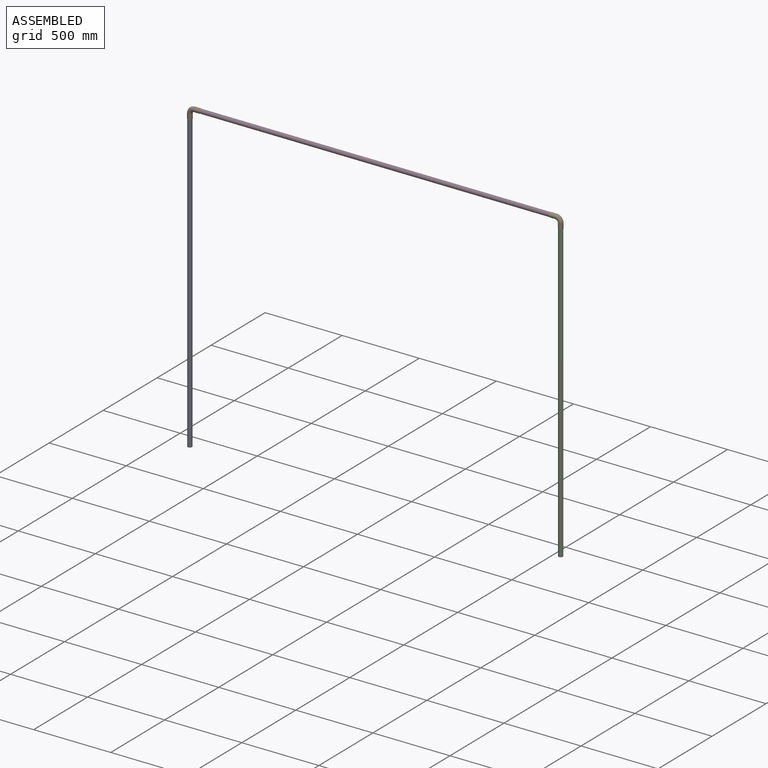
[diagram: assembled view]
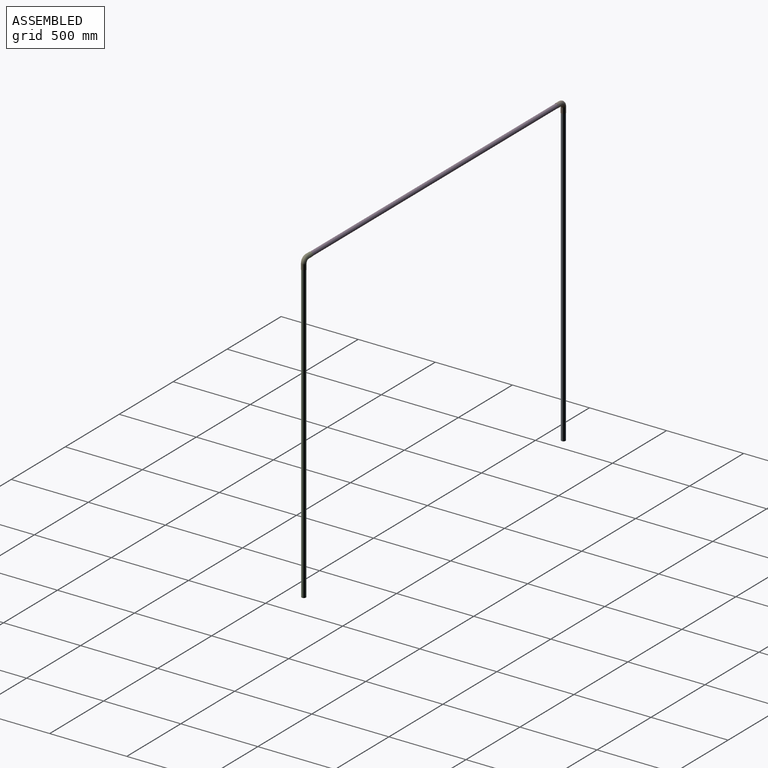
[diagram: assembled view, second angle]
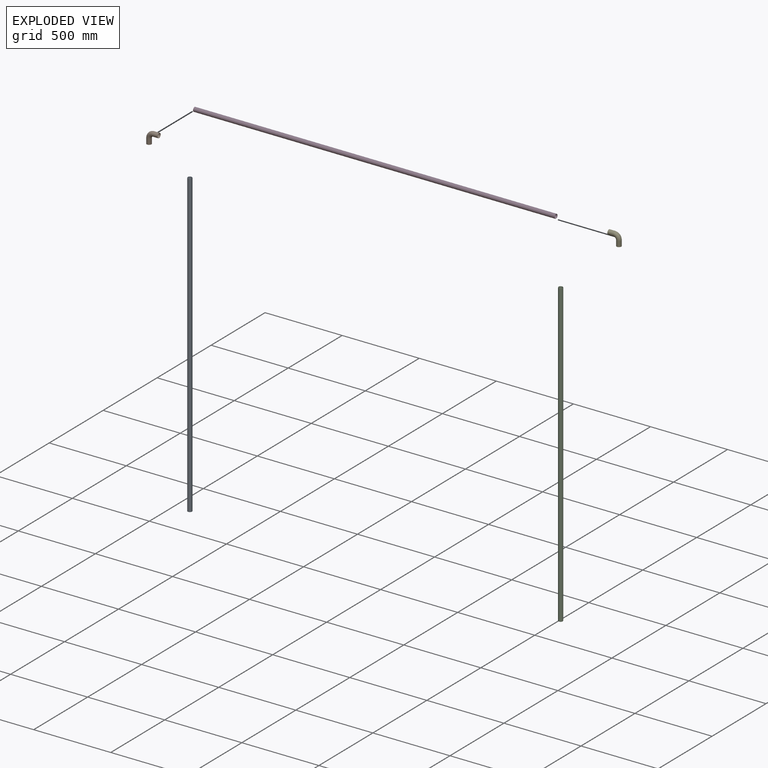
[diagram: exploded view]
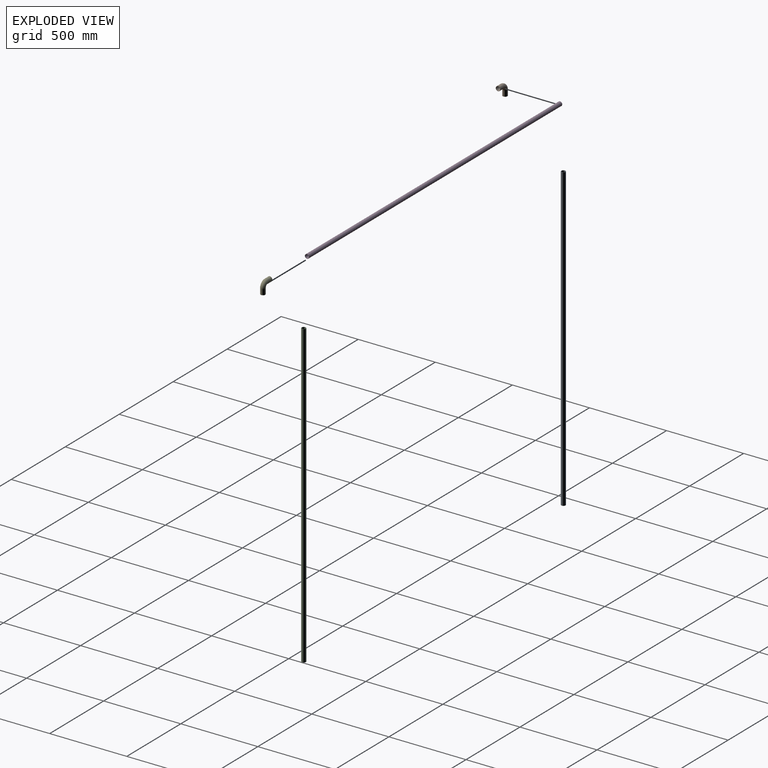
[diagram: exploded view, second angle]
ASSEMBLY  parts=5 mates=4
PART A: 4 faces, bbox 27.6x1955x27.6 mm
  f0: cylinder r=12.3mm len=1955mm, axis (0,1,0), area 151088.6mm2, adj f2,f3
  f1: cylinder r=13.8mm len=1955mm, axis (0,1,0), area 169514.1mm2, adj f2,f3
  f2: plane 27.6x27.6mm, normal (0,-1,0), area 123mm2, adj f0,f1
  f3: plane 27.6x27.6mm, normal (0,1,0), area 123mm2, adj f0,f1
PART B: 8 faces, bbox 30x83.7x83.7 mm
  f0: cylinder r=13.8mm len=35mm, axis (0,-1,0), area 3034.8mm2, adj f1,f3
  f1: torus R=30mm, axis (1,0,0), area 4086mm2, adj f0,f2
  f2: cylinder r=13.8mm len=35mm, axis (0,0,-1), area 3034.8mm2, adj f1,f4
  f3: plane 30x30mm, normal (0,1,0), area 108.6mm2, adj f0,f5
  f4: plane 30x30mm, normal (0,0,-1), area 108.6mm2, adj f2,f7
  f5: cylinder r=15mm len=35mm, axis (0,-1,0), area 3298.7mm2, adj f3,f6
  f6: torus R=30mm, axis (1,0,0), area 4441.3mm2, adj f5,f7
  f7: cylinder r=15mm len=35mm, axis (0,0,-1), area 3298.7mm2, adj f4,f6
PART C: same geometry as A
PART D: 4 faces, bbox 27.6x2345x27.6 mm
  f0: cylinder r=12.3mm len=2345mm, axis (0,1,0), area 181229.1mm2, adj f2,f3
  f1: cylinder r=13.8mm len=2345mm, axis (0,1,0), area 203330.2mm2, adj f2,f3
  f2: plane 27.6x27.6mm, normal (0,-1,0), area 123mm2, adj f0,f1
  f3: plane 27.6x27.6mm, normal (0,1,0), area 123mm2, adj f0,f1
PART E: same geometry as B
PLACE A rot(axis=(-1,0,0),90deg) t=(-1838.3,-355.48,-1942.6)mm
PLACE B rot(axis=(0,0,-1),90deg) t=(-1773.3,-355.48,42.4)mm
PLACE C rot(axis=(0,-0.71,0.71),180deg) t=(566.7,-355.48,-1942.6)mm
PLACE D rot(axis=(0,0,-1),90deg) t=(536.7,-355.48,42.4)mm
PLACE E rot(axis=(0,0,1),90deg) t=(501.7,-355.48,42.4)mm
MATE fastened A.f1 <-> B.f2  axis (0,0,1) through (-1838.3,-355.48,12.4)mm
MATE fastened D.f1 <-> B.f5  axis (-1,0,0) through (-1808.3,-355.48,42.4)mm
MATE fastened C.f1 <-> E.f2  axis (0,0,1) through (566.7,-355.48,12.4)mm
MATE fastened E.f5 <-> D.f1  axis (-1,0,0) through (501.7,-355.48,42.4)mm
